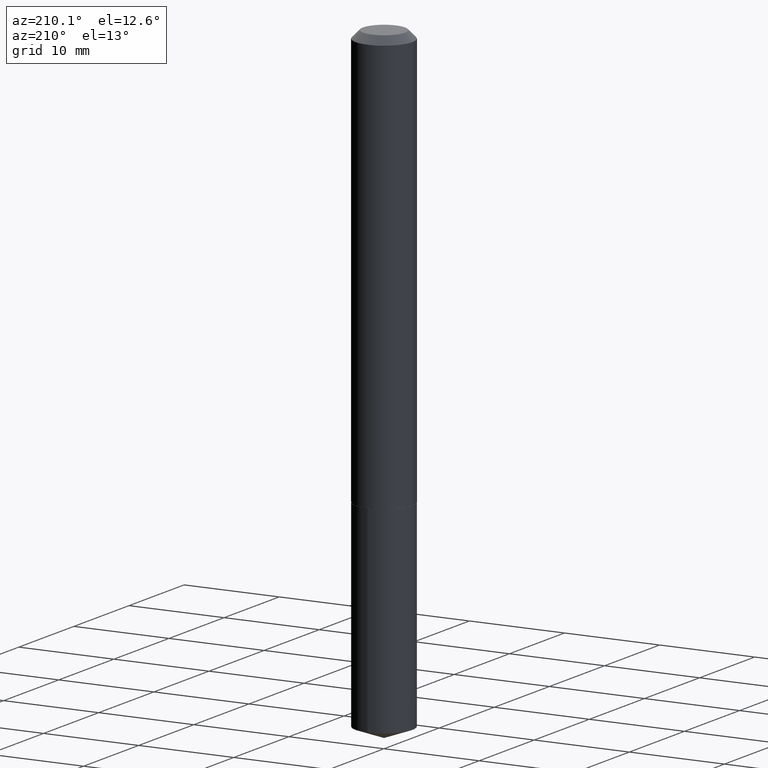
[diagram: clean part render]
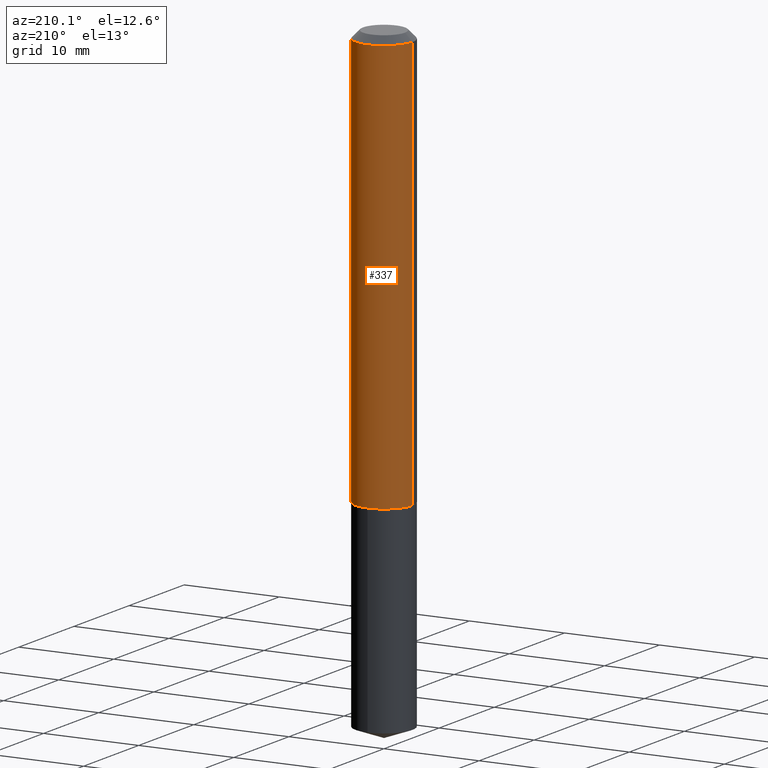
[diagram: same view with one face highlighted and labeled with its STEP entity id]
A machine part, auxiliary view. The second image highlights one B-rep face of the part: STEP entity #337.
In plain terms, the highlighted cylindrical surface (edge-blend (fillet) strip) has radius 2.9997 mm, axis along (-0, 0, 1).
Its self-contained STEP definition (entity closure, byte-faithful):
#3 = AXIS2_PLACEMENT_3D ( 'NONE', #376, #349, #219 ) ;
#6 = AXIS2_PLACEMENT_3D ( 'NONE', #304, #390, #24 ) ;
#9 = ORIENTED_EDGE ( 'NONE', *, *, #385, .T. ) ;
#12 = VERTEX_POINT ( 'NONE', #176 ) ;
#14 = EDGE_LOOP ( 'NONE', ( #9, #120, #311, #183 ) ) ;
#22 = CYLINDRICAL_SURFACE ( 'NONE', #3, 0.1181000000000001077 ) ;
#24 = DIRECTION ( 'NONE',  ( 1.000000000000000000, -6.982962677686267499E-15, 0.000000000000000000 ) ) ;
#39 = VERTEX_POINT ( 'NONE', #180 ) ;
#83 = CARTESIAN_POINT ( 'NONE',  ( 0.1180999999999999966, -9.337966840735971660E-16, -0.03125000000000020123 ) ) ;
#85 = VECTOR ( 'NONE', #138, 39.37007874015748143 ) ;
#89 = EDGE_CURVE ( 'NONE', #379, #374, #169, .T. ) ;
#112 = DIRECTION ( 'NONE',  ( -2.445468806185136877E-29, 3.491481338843145188E-15, 1.000000000000000000 ) ) ;
#113 = AXIS2_PLACEMENT_3D ( 'NONE', #246, #365, #210 ) ;
#120 = ORIENTED_EDGE ( 'NONE', *, *, #356, .T. ) ;
#138 = DIRECTION ( 'NONE',  ( -2.445468806185136877E-29, 3.491481338843145188E-15, 1.000000000000000000 ) ) ;
#167 = FACE_OUTER_BOUND ( 'NONE', #14, .T. ) ;
#169 = CIRCLE ( 'NONE', #113, 0.1180999999999999966 ) ;
#175 = EDGE_CURVE ( 'NONE', #12, #379, #329, .T. ) ;
#176 = CARTESIAN_POINT ( 'NONE',  ( 0.1181000000000002187, -6.870886126709424325E-15, -1.731699999999999795 ) ) ;
#179 = CIRCLE ( 'NONE', #6, 0.1181000000000002187 ) ;
#180 = CARTESIAN_POINT ( 'NONE',  ( -0.1181000000000002187, -5.207047263541994710E-15, -1.731699999999999795 ) ) ;
#183 = ORIENTED_EDGE ( 'NONE', *, *, #175, .F. ) ;
#210 = DIRECTION ( 'NONE',  ( 1.000000000000000000, -6.982962677686266711E-15, 0.000000000000000000 ) ) ;
#219 = DIRECTION ( 'NONE',  ( 1.000000000000000000, -6.982962677686266711E-15, 4.876176775795935793E-29 ) ) ;
#238 = CARTESIAN_POINT ( 'NONE',  ( -0.1181000000000001077, 8.391509709326790846E-16, -5.809262341591049389E-30 ) ) ;
#246 = CARTESIAN_POINT ( 'NONE',  ( 7.642090019328601786E-31, -1.091087918388490144E-16, -0.03125000000000020123 ) ) ;
#270 = VECTOR ( 'NONE', #112, 39.37007874015748143 ) ;
#293 = CARTESIAN_POINT ( 'NONE',  ( 0.1181000000000001077, -8.246878922347488542E-16, 5.758764772215005345E-30 ) ) ;
#304 = CARTESIAN_POINT ( 'NONE',  ( 4.234818331670800246E-29, -6.046198234474674485E-15, -1.731699999999999795 ) ) ;
#311 = ORIENTED_EDGE ( 'NONE', *, *, #89, .F. ) ;
#329 = LINE ( 'NONE', #293, #85 ) ;
#333 = CARTESIAN_POINT ( 'NONE',  ( -0.1180999999999999966, -2.238502542224082018E-15, -0.03125000000000020123 ) ) ;
#337 = ADVANCED_FACE ( 'NONE', ( #167 ), #22, .T. ) ;
#346 = LINE ( 'NONE', #238, #270 ) ;
#349 = DIRECTION ( 'NONE',  ( -2.445468806185136597E-29, 3.491481338843145583E-15, 1.000000000000000000 ) ) ;
#356 = EDGE_CURVE ( 'NONE', #39, #374, #346, .T. ) ;
#365 = DIRECTION ( 'NONE',  ( -2.445468806185136597E-29, 3.491481338843145583E-15, 1.000000000000000000 ) ) ;
#374 = VERTEX_POINT ( 'NONE', #333 ) ;
#376 = CARTESIAN_POINT ( 'NONE',  ( 0.000000000000000000, 0.000000000000000000, 0.000000000000000000 ) ) ;
#379 = VERTEX_POINT ( 'NONE', #83 ) ;
#385 = EDGE_CURVE ( 'NONE', #12, #39, #179, .T. ) ;
#390 = DIRECTION ( 'NONE',  ( -2.445468806185136597E-29, 3.491481338843145583E-15, 1.000000000000000000 ) ) ;